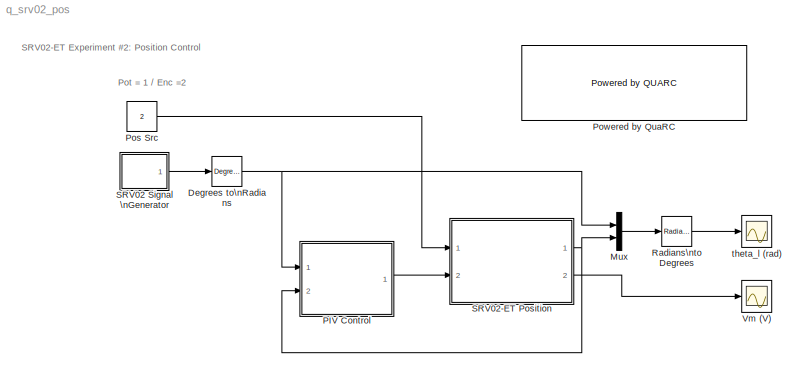
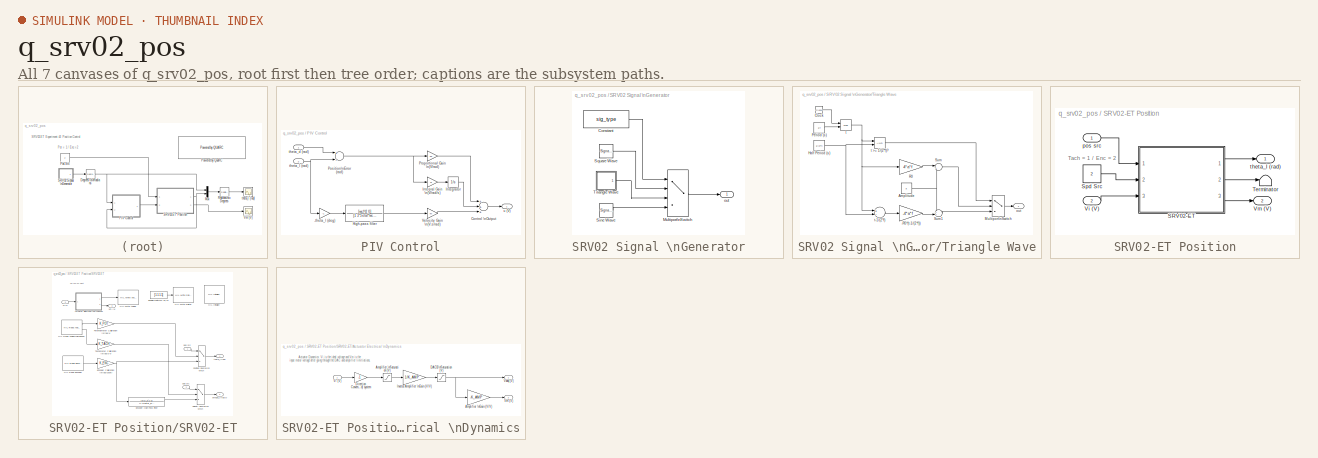
[diagram: thumbnail index - all 7 canvases of the model, root first then tree order]
MODEL q_srv02_pos
KIND model
BLOCK [Reference] Degrees to\nRadians  REF=simulink_extras/Transformations/Degrees to\nRadians
  Ports = [1, 1]
  SID = 80
  SourceBlock = simulink_extras/Transformations/Degrees to\nRadians
  SourceType = DegreesToRadians
BLOCK [Mux] Mux
  DisplayOption = bar
  Inputs = 2
  Ports = [2, 1]
  SID = 2
BLOCK [SubSystem] PIV Control
  Ports = [2, 1]
  RequestExecContextInheritance = off
  SID = 3
BLOCK [Gain] PIV Control/-theta_l (deg)
  Gain = -1
  OutDataTypeStr = Inherit: Inherit via internal rule
  ParamDataTypeStr = Inherit: Inherit via internal rule
  SID = 6
  SaturateOnIntegerOverflow = off
BLOCK [Sum] PIV Control/Control \nOutput
  InputSameDT = off
  Inputs = +++
  OutDataTypeStr = Inherit: Inherit via internal rule
  Ports = [3, 1]
  SID = 7
  SaturateOnIntegerOverflow = off
BLOCK [TransferFcn] PIV Control/High-pass filter
  Denominator = [1 2*zetaf*wcf wcf^2]
  Numerator = [wcf^2 0]
  SID = 8
BLOCK [Gain] PIV Control/Integral Gain \n(V//rad//s)
  Gain = ki
  OutDataTypeStr = Inherit: Inherit via internal rule
  ParamDataTypeStr = Inherit: Inherit via internal rule
  SID = 9
  SaturateOnIntegerOverflow = off
BLOCK [Integrator] PIV Control/Integrator
  LimitOutput = on
  LowerSaturationLimit = -VMAX_DAC
  Ports = [1, 1]
  SID = 10
  UpperSaturationLimit = VMAX_DAC
BLOCK [Sum] PIV Control/Position\nError (rad)
  InputSameDT = off
  Inputs = +-
  OutDataTypeStr = Inherit: Inherit via internal rule
  Ports = [2, 1]
  SID = 11
  SaturateOnIntegerOverflow = off
BLOCK [Gain] PIV Control/Proportional Gain \n(V//rad)
  Gain = kp
  OutDataTypeStr = Inherit: Inherit via internal rule
  ParamDataTypeStr = Inherit: Inherit via internal rule
  SID = 12
  SaturateOnIntegerOverflow = off
BLOCK [Gain] PIV Control/Velocity Gain \n(V.s//rad)
  Gain = kv
  OutDataTypeStr = Inherit: Inherit via internal rule
  ParamDataTypeStr = Inherit: Inherit via internal rule
  SID = 13
  SaturateOnIntegerOverflow = off
BLOCK [Inport] PIV Control/theta_d (rad)
  IconDisplay = Port number
  SID = 4
BLOCK [Inport] PIV Control/theta_l (rad)
  IconDisplay = Port number
  Port = 2
  SID = 5
BLOCK [Outport] PIV Control/u (V)
  IconDisplay = Port number
  SID = 14
BLOCK [Constant] Pos Src
  SID = 15
  Value = 2
BLOCK [Reference] Powered by QuaRC  REF=quarc_library/Logos/Powered by QUARC
  Ports = []
  SID = 16
  SourceBlock = quarc_library/Logos/Powered by QUARC
  SourceType = Powered by QUARC
BLOCK [Reference] Radians\nto Degrees  REF=simulink_extras/Transformations/Radians\nto Degrees
  Ports = [1, 1]
  SID = 81
  SourceBlock = simulink_extras/Transformations/Radians\nto Degrees
  SourceType = RadiansToDegrees
BLOCK [SubSystem] SRV02 Signal \nGenerator
  Ports = [0, 1]
  RequestExecContextInheritance = off
  SID = 17
BLOCK [Constant] SRV02 Signal \nGenerator/Constant
  SID = 18
  Value = sig_type
BLOCK [MultiPortSwitch] SRV02 Signal \nGenerator/Multiport\nSwitch
  InputSameDT = off
  Ports = [4, 1]
  SID = 19
  SaturateOnIntegerOverflow = off
BLOCK [SignalGenerator] SRV02 Signal \nGenerator/Sine Wave
  Amplitude = a
  Frequency = f
  Ports = [0, 1]
  SID = 20
BLOCK [SignalGenerator] SRV02 Signal \nGenerator/Square Wave
  Amplitude = a
  Frequency = f
  Ports = [0, 1]
  SID = 21
  WaveForm = square
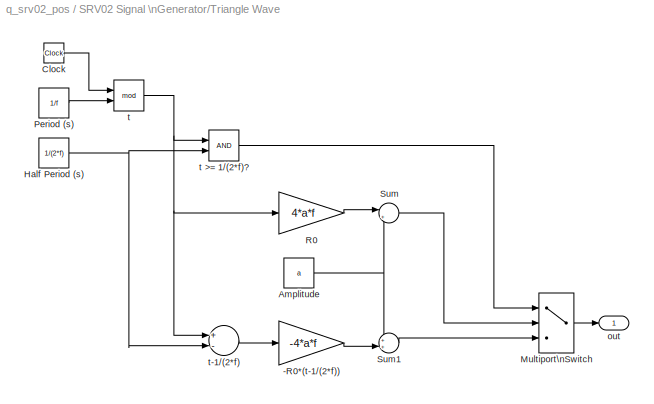
BLOCK [SubSystem] SRV02 Signal \nGenerator/Triangle Wave
  Ports = [0, 1]
  RequestExecContextInheritance = off
  SID = 22
BLOCK [Gain] SRV02 Signal \nGenerator/Triangle Wave/-R0*(t-1//(2*f))
  Gain = -4*a*f
  OutDataTypeStr = Inherit: Inherit via internal rule
  ParamDataTypeStr = Inherit: Inherit via internal rule
  SID = 23
  SaturateOnIntegerOverflow = off
BLOCK [Constant] SRV02 Signal \nGenerator/Triangle Wave/Amplitude
  SID = 24
  Value = a
BLOCK [Clock] SRV02 Signal \nGenerator/Triangle Wave/Clock
  SID = 25
BLOCK [Constant] SRV02 Signal \nGenerator/Triangle Wave/Half Period (s)
  SID = 26
  Value = 1/(2*f)
BLOCK [MultiPortSwitch] SRV02 Signal \nGenerator/Triangle Wave/Multiport\nSwitch
  DataPortOrder = Zero-based contiguous
  InputSameDT = off
  Inputs = 2
  Ports = [3, 1]
  SID = 27
  SaturateOnIntegerOverflow = off
  zeroidx = on
BLOCK [Constant] SRV02 Signal \nGenerator/Triangle Wave/Period (s)
  SID = 28
  Value = 1/f
BLOCK [Gain] SRV02 Signal \nGenerator/Triangle Wave/R0
  Gain = 4*a*f
  OutDataTypeStr = Inherit: Inherit via internal rule
  ParamDataTypeStr = Inherit: Inherit via internal rule
  SID = 29
  SaturateOnIntegerOverflow = off
BLOCK [Sum] SRV02 Signal \nGenerator/Triangle Wave/Sum
  IconShape = round
  InputSameDT = off
  Inputs = |+-
  OutDataTypeStr = Inherit: Inherit via internal rule
  Ports = [2, 1]
  SID = 30
  SaturateOnIntegerOverflow = off
BLOCK [Sum] SRV02 Signal \nGenerator/Triangle Wave/Sum1
  IconShape = round
  InputSameDT = off
  Inputs = ++|
  OutDataTypeStr = Inherit: Inherit via internal rule
  Ports = [2, 1]
  SID = 31
  SaturateOnIntegerOverflow = off
BLOCK [Outport] SRV02 Signal \nGenerator/Triangle Wave/out
  IconDisplay = Port number
  SID = 35
BLOCK [Math] SRV02 Signal \nGenerator/Triangle Wave/t
  Operator = mod
  Ports = [2, 1]
  SID = 32
BLOCK [RelationalOperator] SRV02 Signal \nGenerator/Triangle Wave/t >= 1//(2*f)?
  InputSameDT = off
  OutDataTypeStr = boolean
  Ports = [2, 1]
  SID = 33
BLOCK [Sum] SRV02 Signal \nGenerator/Triangle Wave/t-1//(2*f)
  InputSameDT = off
  Inputs = +-
  OutDataTypeStr = Inherit: Inherit via internal rule
  Ports = [2, 1]
  SID = 34
  SaturateOnIntegerOverflow = off
BLOCK [Outport] SRV02 Signal \nGenerator/out
  IconDisplay = Port number
  SID = 36
BLOCK [SubSystem] SRV02-ET Position
  Ports = [2, 2]
  RequestExecContextInheritance = off
  SID = 37
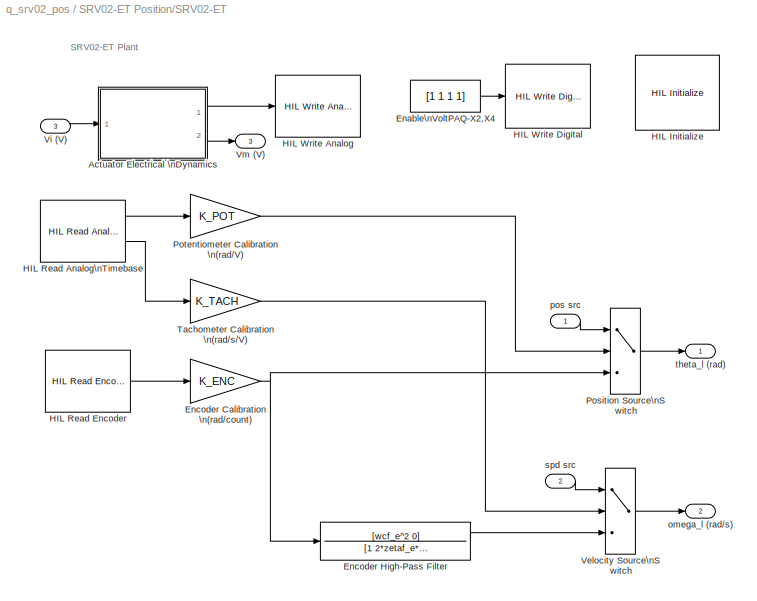
BLOCK [SubSystem] SRV02-ET Position/SRV02-ET
  Ports = [3, 3]
  RequestExecContextInheritance = off
  SID = 40
BLOCK [SubSystem] SRV02-ET Position/SRV02-ET/Actuator Electrical \nDynamics
  Ports = [1, 2]
  RequestExecContextInheritance = off
  SID = 44
BLOCK [Gain] SRV02-ET Position/SRV02-ET/Actuator Electrical \nDynamics/Amplifier \nGain (V//V)
  Gain = -K_AMP
  OutDataTypeStr = Inherit: Inherit via internal rule
  ParamDataTypeStr = Inherit: Inherit via internal rule
  SID = 46
  SaturateOnIntegerOverflow = off
BLOCK [Saturate] SRV02-ET Position/SRV02-ET/Actuator Electrical \nDynamics/Amplifier \nSaturation (V)
  InputPortMap = u0
  LowerLimit = -VMAX_AMP
  Ports = [1, 1]
  SID = 47
  UpperLimit = VMAX_AMP
BLOCK [Saturate] SRV02-ET Position/SRV02-ET/Actuator Electrical \nDynamics/DACB\nSaturation (V)
  InputPortMap = u0
  LowerLimit = -VMAX_DAC
  Ports = [1, 1]
  SID = 48
  UpperLimit = VMAX_DAC
BLOCK [Gain] SRV02-ET Position/SRV02-ET/Actuator Electrical \nDynamics/Direction Convention:\n(Right-Hand) system
  Gain = -1
  SID = 49
BLOCK [Gain] SRV02-ET Position/SRV02-ET/Actuator Electrical \nDynamics/Inverse Amplifier \nGain (V//V)
  Gain = 1/K_AMP
  OutDataTypeStr = Inherit: Inherit via internal rule
  ParamDataTypeStr = Inherit: Inherit via internal rule
  SID = 50
  SaturateOnIntegerOverflow = off
BLOCK [Outport] SRV02-ET Position/SRV02-ET/Actuator Electrical \nDynamics/Vdaq (V)
  IconDisplay = Port number
  SID = 51
BLOCK [Inport] SRV02-ET Position/SRV02-ET/Actuator Electrical \nDynamics/Vi (V)
  IconDisplay = Port number
  SID = 45
BLOCK [Outport] SRV02-ET Position/SRV02-ET/Actuator Electrical \nDynamics/Vm (V)
  IconDisplay = Port number
  Port = 2
  SID = 52
BLOCK [Constant] SRV02-ET Position/SRV02-ET/Enable\nVoltPAQ-X2,X4
  SID = 54
  Value = [1 1 1 1]
BLOCK [Gain] SRV02-ET Position/SRV02-ET/Encoder Calibration \n(rad//count)
  Gain = K_ENC
  SID = 55
BLOCK [TransferFcn] SRV02-ET Position/SRV02-ET/Encoder High-Pass Filter
  Denominator = [1 2*zetaf_e*wcf_e wcf_e^2]
  Numerator = [wcf_e^2 0]
  SID = 56
BLOCK [Reference] SRV02-ET Position/SRV02-ET/HIL Initialize  REF=quarc_library/Data Acquisition/Generic/Configuration/HIL Initialize
  AttributesFormatString = %<object_name> (%<board_type>-%<board_number>)
  Ports = []
  SID = 57
  SourceBlock = quarc_library/Data Acquisition/Generic/Configuration/HIL Initialize
  SourceType = HIL Initialize
  UserData = DataTag0
  UserDataPersistent = on
  active = off
  analog_input_channels = [0:1]
  analog_input_maximums = 10
  analog_input_minimums = -10
  analog_output_channels = [0:1]
  analog_output_maximums = 10
  analog_output_minimums = -10
  board_number = 0
  board_options = d0=digital;d1=digital;led=auto;update_rate=normal
  board_type = q2_usb
  clock_modes = []
  digital_input_channels = []
  digital_output_channels = [0:7]
  digital_output_configuration = []
  encoder_channels = [0:1]
  encoder_filter_frequency = []
  exclusive = off
  final_analog_outputs = [0]
  final_digital_outputs = [0]
  final_other_outputs = []
  final_pwm_outputs = [0]
  hardware_clocks = [0:2]
  initial_analog_outputs = [0]
  initial_clock_frequencies = []
  initial_digital_outputs = [0]
  initial_encoder_counts = [0]
  initial_other_outputs = []
  initial_pwm_outputs = [0]
  object_name = HIL-1
  other_output_channels = []
  pwm_alignment = []
  pwm_channels = []
  pwm_configuration = []
  pwm_frequency = 1/0.020
  pwm_leading_deadband = []
  pwm_modes = [0]
  pwm_polarity = []
  pwm_trailing_deadband = []
  quadrature = [4]
  set_analog_input_params_at_start = on
  set_analog_input_params_at_switch_in = off
  set_analog_output_params_at_start = on
  set_analog_output_params_at_switch_in = off
  set_analog_outputs_at_start = on
  set_analog_outputs_at_switch_in = off
  set_analog_outputs_at_switch_out = off
  set_analog_outputs_at_terminate = on
  set_analog_outputs_on_watchdog = off
  set_clock_frequencies_at_start = off
  set_clock_frequencies_at_switch_in = off
  set_clock_params_at_start = off
  set_clock_params_at_switch_in = off
  set_digital_output_params_at_start = off
  set_digital_output_params_at_switch_in = off
  set_digital_outputs_at_start = on
  set_digital_outputs_at_switch_in = off
  set_digital_outputs_at_switch_out = off
  set_digital_outputs_at_terminate = on
  set_digital_outputs_on_watchdog = off
  set_encoder_counts_at_start = on
  set_encoder_counts_at_switch_in = off
  set_encoder_params_at_start = on
  set_encoder_params_at_switch_in = off
  set_other_outputs_at_start = off
  set_other_outputs_at_switch_in = off
  set_other_outputs_at_switch_out = off
  set_other_outputs_at_terminate = off
  set_other_outputs_on_watchdog = off
  set_pwm_outputs_at_start = on
  set_pwm_outputs_at_switch_in = off
  set_pwm_outputs_at_switch_out = off
  set_pwm_outputs_at_terminate = on
  set_pwm_outputs_on_watchdog = off
  set_pwm_params_at_start = on
  set_pwm_params_at_switch_in = off
  watchdog_analog_outputs = 0
  watchdog_digital_outputs = [0]
  watchdog_other_outputs = []
  watchdog_pwm_outputs = [0]
BLOCK [Reference] SRV02-ET Position/SRV02-ET/HIL Read Analog\nTimebase  REF=quarc_library/Data Acquisition/Generic/Timebases/HIL Read Analog\nTimebase
  AttributesFormatString = (%<object_name>)
  Ports = [0, 2]
  SID = 58
  SourceBlock = quarc_library/Data Acquisition/Generic/Timebases/HIL Read Analog\nTimebase
  SourceType = HIL Read Analog Timebase
  Tag = unassigned
  UserData = DataTag1
  UserDataPersistent = on
  active = on
  channels = [0:1]
  clock = 0
  object_name = HIL-1
  samples_in_buffer = max(ceil(1/qc_get_step_size), 1)
  vector_output = off
BLOCK [Reference] SRV02-ET Position/SRV02-ET/HIL Read Encoder  REF=quarc_library/Data Acquisition/Generic/Immediate I//O/HIL Read Encoder
  AttributesFormatString = (%<object_name>)
  Ports = [0, 1]
  SID = 59
  SourceBlock = quarc_library/Data Acquisition/Generic/Immediate I//O/HIL Read Encoder
  SourceType = HIL Read Encoder
  Tag = unassigned
  UserData = DataTag2
  UserDataPersistent = on
  active = on
  channels = 0
  data_type = double
  data_type_mode = Inherit via back propagation
  object_name = HIL-1
  sample_time = qc_get_step_size
  vector_output = off
BLOCK [Reference] SRV02-ET Position/SRV02-ET/HIL Write Analog  REF=quarc_library/Data Acquisition/Generic/Immediate I//O/HIL Write Analog
  AttributesFormatString = (%<object_name>)
  Ports = [1]
  SID = 60
  SourceBlock = quarc_library/Data Acquisition/Generic/Immediate I//O/HIL Write Analog
  SourceType = HIL Write Analog
  Tag = unassigned
  UserData = DataTag3
  UserDataPersistent = on
  active = off
  channels = 0
  object_name = HIL-1
  sample_time = -1
  vector_input = off
BLOCK [Reference] SRV02-ET Position/SRV02-ET/HIL Write Digital  REF=quarc_library/Data Acquisition/Generic/Immediate I//O/HIL Write Digital
  AttributesFormatString = (%<object_name>)
  Ports = [1]
  SID = 61
  SourceBlock = quarc_library/Data Acquisition/Generic/Immediate I//O/HIL Write Digital
  SourceType = HIL Write Digital
  UserData = DataTag4
  UserDataPersistent = on
  active = off
  channels = [0:3]
  object_name = HIL-1
  sample_time = -1
  vector_input = on
BLOCK [MultiPortSwitch] SRV02-ET Position/SRV02-ET/Position Source\nSwitch
  InputSameDT = off
  Inputs = 2
  Ports = [3, 1]
  SID = 62
  SaturateOnIntegerOverflow = off
BLOCK [Gain] SRV02-ET Position/SRV02-ET/Potentiometer Calibration \n(rad//V)
  Gain = K_POT
  SID = 63
BLOCK [Gain] SRV02-ET Position/SRV02-ET/Tachometer Calibration \n(rad//s//V)
  Gain = K_TACH
  SID = 64
BLOCK [MultiPortSwitch] SRV02-ET Position/SRV02-ET/Velocity Source\nSwitch
  InputSameDT = off
  Inputs = 2
  Ports = [3, 1]
  SID = 65
  SaturateOnIntegerOverflow = off
BLOCK [Inport] SRV02-ET Position/SRV02-ET/Vi (V)
  IconDisplay = Port number
  Port = 3
  SID = 43
BLOCK [Outport] SRV02-ET Position/SRV02-ET/Vm (V)
  IconDisplay = Port number
  InitialOutput = 0
  Port = 3
  SID = 68
BLOCK [Outport] SRV02-ET Position/SRV02-ET/omega_l (rad//s)
  IconDisplay = Port number
  InitialOutput = 0
  Port = 2
  SID = 67
BLOCK [Inport] SRV02-ET Position/SRV02-ET/pos src
  IconDisplay = Port number
  SID = 41
BLOCK [Inport] SRV02-ET Position/SRV02-ET/spd src
  IconDisplay = Port number
  Port = 2
  SID = 42
BLOCK [Outport] SRV02-ET Position/SRV02-ET/theta_l (rad)
  IconDisplay = Port number
  InitialOutput = 0
  SID = 66
BLOCK [Constant] SRV02-ET Position/Spd Src
  SID = 70
  Value = 2
BLOCK [Terminator] SRV02-ET Position/Terminator
  SID = 71
BLOCK [Inport] SRV02-ET Position/Vi (V)
  IconDisplay = Port number
  Port = 2
  SID = 39
BLOCK [Outport] SRV02-ET Position/Vm (V)
  IconDisplay = Port number
  Port = 2
  SID = 73
BLOCK [Inport] SRV02-ET Position/pos src
  IconDisplay = Port number
  SID = 38
BLOCK [Outport] SRV02-ET Position/theta_l (rad)
  IconDisplay = Port number
  SID = 72
BLOCK [Scope] Vm (V)
  Floating = off
  LimitDataPoints = off
  NumInputPorts = 1
  Ports = [1]
  SID = 75
  SampleTime = 0
  SaveName = data_vm
  SaveToWorkspace = on
  ShowLegends = off
  YMax = 10
  YMin = -10
BLOCK [Scope] theta_l (rad)
  Floating = off
  LimitDataPoints = off
  NumInputPorts = 1
  Ports = [1]
  SID = 76
  SampleTime = 0
  SaveName = data_pos
  SaveToWorkspace = on
  ShowLegends = off
  YMax = 35
  YMin = -35
ANNOTATION (root): Pot = 1 / Enc =2
ANNOTATION (root): SRV02-ET Experiment #2: Position Control
ANNOTATION SRV02-ET Position: Tach = 1 / Enc = 2
ANNOTATION SRV02-ET Position/SRV02-ET: SRV02-ET Plant
ANNOTATION SRV02-ET Position/SRV02-ET/Actuator Electrical \nDynamics: Actuator Dynamics: Vi is the ideal voltage and Vm is the \ninput motor voltage after going through the DAC and amplifier limitiations.
NET Degrees to\nRadians:1 -> Mux:1, PIV Control:1
LINE Mux:1 -> Radians\nto Degrees:1
LINE PIV Control/-theta_l (deg):1 -> PIV Control/High-pass filter:1
LINE PIV Control/Control \nOutput:1 -> PIV Control/u (V):1
LINE PIV Control/High-pass filter:1 -> PIV Control/Velocity Gain \n(V.s//rad):1
LINE PIV Control/Integral Gain \n(V//rad//s):1 -> PIV Control/Integrator:1
LINE PIV Control/Integrator:1 -> PIV Control/Control \nOutput:2
NET PIV Control/Position\nError (rad):1 -> PIV Control/Integral Gain \n(V//rad//s):1, PIV Control/Proportional Gain \n(V//rad):1
LINE PIV Control/Proportional Gain \n(V//rad):1 -> PIV Control/Control \nOutput:1
LINE PIV Control/Velocity Gain \n(V.s//rad):1 -> PIV Control/Control \nOutput:3
LINE PIV Control/theta_d (rad):1 -> PIV Control/Position\nError (rad):1
NET PIV Control/theta_l (rad):1 -> PIV Control/-theta_l (deg):1, PIV Control/Position\nError (rad):2
LINE PIV Control:1 -> SRV02-ET Position:2
LINE Pos Src:1 -> SRV02-ET Position:1
LINE Radians\nto Degrees:1 -> theta_l (rad):1
LINE SRV02 Signal \nGenerator/Constant:1 -> SRV02 Signal \nGenerator/Multiport\nSwitch:1
LINE SRV02 Signal \nGenerator/Multiport\nSwitch:1 -> SRV02 Signal \nGenerator/out:1
LINE SRV02 Signal \nGenerator/Sine Wave:1 -> SRV02 Signal \nGenerator/Multiport\nSwitch:4
LINE SRV02 Signal \nGenerator/Square Wave:1 -> SRV02 Signal \nGenerator/Multiport\nSwitch:2
LINE SRV02 Signal \nGenerator/Triangle Wave/-R0*(t-1//(2*f)):1 -> SRV02 Signal \nGenerator/Triangle Wave/Sum1:2
NET SRV02 Signal \nGenerator/Triangle Wave/Amplitude:1 -> SRV02 Signal \nGenerator/Triangle Wave/Sum1:1, SRV02 Signal \nGenerator/Triangle Wave/Sum:2
LINE SRV02 Signal \nGenerator/Triangle Wave/Clock:1 -> SRV02 Signal \nGenerator/Triangle Wave/t:1
NET SRV02 Signal \nGenerator/Triangle Wave/Half Period (s):1 -> SRV02 Signal \nGenerator/Triangle Wave/t >= 1//(2*f)?:2, SRV02 Signal \nGenerator/Triangle Wave/t-1//(2*f):2
LINE SRV02 Signal \nGenerator/Triangle Wave/Multiport\nSwitch:1 -> SRV02 Signal \nGenerator/Triangle Wave/out:1
LINE SRV02 Signal \nGenerator/Triangle Wave/Period (s):1 -> SRV02 Signal \nGenerator/Triangle Wave/t:2
LINE SRV02 Signal \nGenerator/Triangle Wave/R0:1 -> SRV02 Signal \nGenerator/Triangle Wave/Sum:1
LINE SRV02 Signal \nGenerator/Triangle Wave/Sum1:1 -> SRV02 Signal \nGenerator/Triangle Wave/Multiport\nSwitch:3
LINE SRV02 Signal \nGenerator/Triangle Wave/Sum:1 -> SRV02 Signal \nGenerator/Triangle Wave/Multiport\nSwitch:2
LINE SRV02 Signal \nGenerator/Triangle Wave/t >= 1//(2*f)?:1 -> SRV02 Signal \nGenerator/Triangle Wave/Multiport\nSwitch:1
LINE SRV02 Signal \nGenerator/Triangle Wave/t-1//(2*f):1 -> SRV02 Signal \nGenerator/Triangle Wave/-R0*(t-1//(2*f)):1
NET SRV02 Signal \nGenerator/Triangle Wave/t:1 -> SRV02 Signal \nGenerator/Triangle Wave/R0:1, SRV02 Signal \nGenerator/Triangle Wave/t >= 1//(2*f)?:1, SRV02 Signal \nGenerator/Triangle Wave/t-1//(2*f):1
LINE SRV02 Signal \nGenerator/Triangle Wave:1 -> SRV02 Signal \nGenerator/Multiport\nSwitch:3
LINE SRV02 Signal \nGenerator:1 -> Degrees to\nRadians:1
LINE SRV02-ET Position/SRV02-ET/Actuator Electrical \nDynamics/Amplifier \nGain (V//V):1 -> SRV02-ET Position/SRV02-ET/Actuator Electrical \nDynamics/Vm (V):1
LINE SRV02-ET Position/SRV02-ET/Actuator Electrical \nDynamics/Amplifier \nSaturation (V):1 -> SRV02-ET Position/SRV02-ET/Actuator Electrical \nDynamics/Inverse Amplifier \nGain (V//V):1
NET SRV02-ET Position/SRV02-ET/Actuator Electrical \nDynamics/DACB\nSaturation (V):1 -> SRV02-ET Position/SRV02-ET/Actuator Electrical \nDynamics/Amplifier \nGain (V//V):1, SRV02-ET Position/SRV02-ET/Actuator Electrical \nDynamics/Vdaq (V):1
LINE SRV02-ET Position/SRV02-ET/Actuator Electrical \nDynamics/Direction Convention:\n(Right-Hand) system:1 -> SRV02-ET Position/SRV02-ET/Actuator Electrical \nDynamics/Amplifier \nSaturation (V):1
LINE SRV02-ET Position/SRV02-ET/Actuator Electrical \nDynamics/Inverse Amplifier \nGain (V//V):1 -> SRV02-ET Position/SRV02-ET/Actuator Electrical \nDynamics/DACB\nSaturation (V):1
LINE SRV02-ET Position/SRV02-ET/Actuator Electrical \nDynamics/Vi (V):1 -> SRV02-ET Position/SRV02-ET/Actuator Electrical \nDynamics/Direction Convention:\n(Right-Hand) system:1
LINE SRV02-ET Position/SRV02-ET/Actuator Electrical \nDynamics:1 -> SRV02-ET Position/SRV02-ET/HIL Write Analog:1
LINE SRV02-ET Position/SRV02-ET/Actuator Electrical \nDynamics:2 -> SRV02-ET Position/SRV02-ET/Vm (V):1
LINE SRV02-ET Position/SRV02-ET/Enable\nVoltPAQ-X2,X4:1 -> SRV02-ET Position/SRV02-ET/HIL Write Digital:1
NET SRV02-ET Position/SRV02-ET/Encoder Calibration \n(rad//count):1 -> SRV02-ET Position/SRV02-ET/Encoder High-Pass Filter:1, SRV02-ET Position/SRV02-ET/Position Source\nSwitch:3
LINE SRV02-ET Position/SRV02-ET/Encoder High-Pass Filter:1 -> SRV02-ET Position/SRV02-ET/Velocity Source\nSwitch:3
LINE SRV02-ET Position/SRV02-ET/HIL Read Analog\nTimebase:1 -> SRV02-ET Position/SRV02-ET/Potentiometer Calibration \n(rad//V):1
LINE SRV02-ET Position/SRV02-ET/HIL Read Analog\nTimebase:2 -> SRV02-ET Position/SRV02-ET/Tachometer Calibration \n(rad//s//V):1
LINE SRV02-ET Position/SRV02-ET/HIL Read Encoder:1 -> SRV02-ET Position/SRV02-ET/Encoder Calibration \n(rad//count):1
LINE SRV02-ET Position/SRV02-ET/Position Source\nSwitch:1 -> SRV02-ET Position/SRV02-ET/theta_l (rad):1
LINE SRV02-ET Position/SRV02-ET/Potentiometer Calibration \n(rad//V):1 -> SRV02-ET Position/SRV02-ET/Position Source\nSwitch:2
LINE SRV02-ET Position/SRV02-ET/Tachometer Calibration \n(rad//s//V):1 -> SRV02-ET Position/SRV02-ET/Velocity Source\nSwitch:2
LINE SRV02-ET Position/SRV02-ET/Velocity Source\nSwitch:1 -> SRV02-ET Position/SRV02-ET/omega_l (rad//s):1
LINE SRV02-ET Position/SRV02-ET/Vi (V):1 -> SRV02-ET Position/SRV02-ET/Actuator Electrical \nDynamics:1
LINE SRV02-ET Position/SRV02-ET/pos src:1 -> SRV02-ET Position/SRV02-ET/Position Source\nSwitch:1
LINE SRV02-ET Position/SRV02-ET/spd src:1 -> SRV02-ET Position/SRV02-ET/Velocity Source\nSwitch:1
LINE SRV02-ET Position/SRV02-ET:1 -> SRV02-ET Position/theta_l (rad):1
LINE SRV02-ET Position/SRV02-ET:2 -> SRV02-ET Position/Terminator:1
LINE SRV02-ET Position/SRV02-ET:3 -> SRV02-ET Position/Vm (V):1
LINE SRV02-ET Position/Spd Src:1 -> SRV02-ET Position/SRV02-ET:2
LINE SRV02-ET Position/Vi (V):1 -> SRV02-ET Position/SRV02-ET:3
LINE SRV02-ET Position/pos src:1 -> SRV02-ET Position/SRV02-ET:1
NET SRV02-ET Position:1 -> Mux:2, PIV Control:2
LINE SRV02-ET Position:2 -> Vm (V):1
note: NET lines group one-source signal fan-out (src -> all destinations, sorted); 1:1 wires keep LINE
